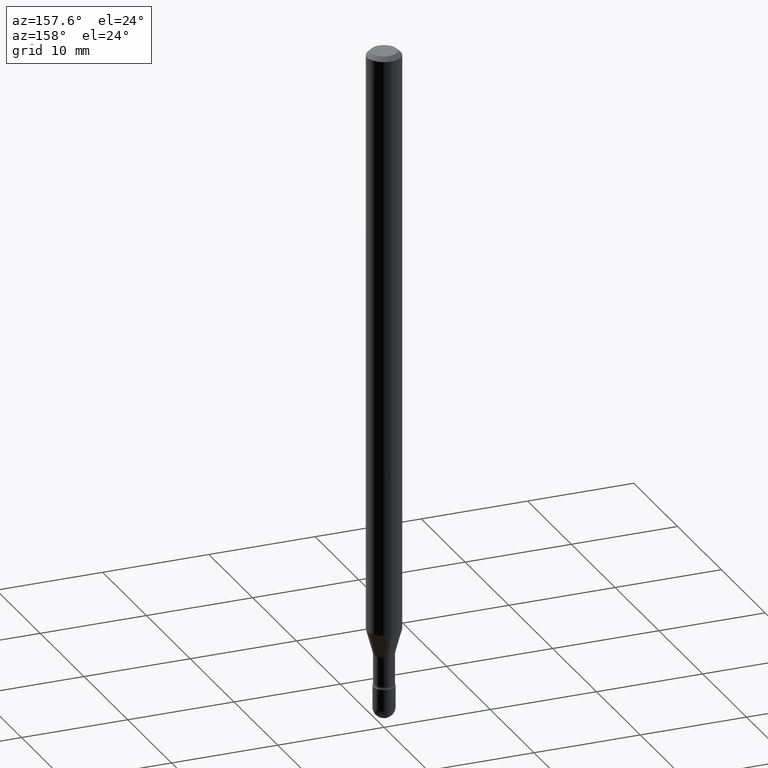
[diagram: clean part render]
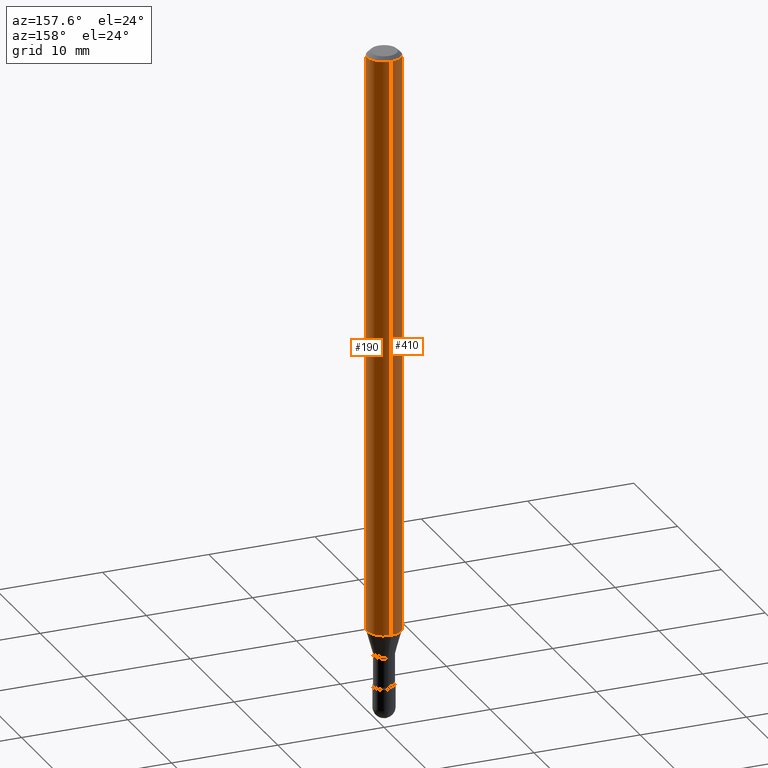
[diagram: same view with one multi-face feature highlighted, each face labeled with its STEP entity id]
A machine part, auxiliary view. The highlighted faces form ONE feature: a constant-radius fillet chain: 2 tangent blend faces with common blend radius 1.5875 mm. The faces share edges in the B-rep.
Their STEP definitions:
[1] entity #190 (Cylinder):
#9 = VECTOR ( 'NONE', #114, 39.37007874015748143 ) ;
#38 = VERTEX_POINT ( 'NONE', #508 ) ;
#42 = LINE ( 'NONE', #388, #117 ) ;
#60 = CARTESIAN_POINT ( 'NONE',  ( -4.364351673553388650E-16, -0.06250000000000759115, -2.167071934891535268 ) ) ;
#74 = DIRECTION ( 'NONE',  ( -6.982962677686265922E-15, -1.000000000000000000, 3.491484914929779537E-15 ) ) ;
#97 = VERTEX_POINT ( 'NONE', #549 ) ;
#108 = CIRCLE ( 'NONE', #239, 0.06250000000000000000 ) ;
#114 = DIRECTION ( 'NONE',  ( -2.445466309017185852E-29, 3.491484914929780326E-15, 1.000000000000000000 ) ) ;
#117 = VECTOR ( 'NONE', #302, 39.37007874015748143 ) ;
#119 = DIRECTION ( 'NONE',  ( -2.445466309017186132E-29, 3.491484914929780720E-15, 1.000000000000000000 ) ) ;
#125 = ORIENTED_EDGE ( 'NONE', *, *, #219, .T. ) ;
#126 = AXIS2_PLACEMENT_3D ( 'NONE', #511, #119, #74 ) ;
#186 = DIRECTION ( 'NONE',  ( -2.445466309017186132E-29, 3.491484914929780720E-15, 1.000000000000000000 ) ) ;
#190 = ADVANCED_FACE ( 'NONE', ( #339 ), #198, .T. ) ;
#193 = CARTESIAN_POINT ( 'NONE',  ( -4.364351673553912750E-16, -0.06250000000000005551, -0.01499999999999986587 ) ) ;
#194 = CIRCLE ( 'NONE', #352, 0.06250000000000000000 ) ;
#198 = CYLINDRICAL_SURFACE ( 'NONE', #126, 0.06250000000000000000 ) ;
#219 = EDGE_CURVE ( 'NONE', #97, #38, #42, .T. ) ;
#239 = AXIS2_PLACEMENT_3D ( 'NONE', #247, #433, #476 ) ;
#241 = ORIENTED_EDGE ( 'NONE', *, *, #520, .F. ) ;
#242 = CARTESIAN_POINT ( 'NONE',  ( 3.668199463525799289E-31, -5.237227372394699799E-17, -0.01500000000000008271 ) ) ;
#247 = CARTESIAN_POINT ( 'NONE',  ( 5.299501405993934666E-29, -7.566298970241487768E-15, -2.167071934891535712 ) ) ;
#267 = ORIENTED_EDGE ( 'NONE', *, *, #399, .F. ) ;
#302 = DIRECTION ( 'NONE',  ( -2.445466309017185852E-29, 3.491484914929780326E-15, 1.000000000000000000 ) ) ;
#325 = DIRECTION ( 'NONE',  ( -6.982962677686265922E-15, -1.000000000000000000, 3.483106191921935554E-15 ) ) ;
#332 = CARTESIAN_POINT ( 'NONE',  ( -4.364351673553916201E-16, -0.06250000000000000000, 6.962912060743572596E-16 ) ) ;
#339 = FACE_OUTER_BOUND ( 'NONE', #355, .T. ) ;
#348 = VERTEX_POINT ( 'NONE', #193 ) ;
#352 = AXIS2_PLACEMENT_3D ( 'NONE', #242, #186, #325 ) ;
#355 = EDGE_LOOP ( 'NONE', ( #534, #125, #267, #241 ) ) ;
#376 = VERTEX_POINT ( 'NONE', #60 ) ;
#388 = CARTESIAN_POINT ( 'NONE',  ( 4.440892098500625669E-16, 0.06250000000000000000, 2.598555917081347682E-16 ) ) ;
#399 = EDGE_CURVE ( 'NONE', #348, #38, #194, .T. ) ;
#433 = DIRECTION ( 'NONE',  ( -2.445466309017186132E-29, 3.491484914929780720E-15, 1.000000000000000000 ) ) ;
#440 = LINE ( 'NONE', #332, #9 ) ;
#473 = EDGE_CURVE ( 'NONE', #376, #97, #108, .T. ) ;
#476 = DIRECTION ( 'NONE',  ( -6.982962677686265922E-15, -1.000000000000000000, 4.370956789862821150E-15 ) ) ;
#508 = CARTESIAN_POINT ( 'NONE',  ( 4.440892098501159629E-16, 0.06249999999999995837, -0.01500000000000030129 ) ) ;
#511 = CARTESIAN_POINT ( 'NONE',  ( -1.169113584055446105E-44, 1.669184350826100908E-30, 4.780733988912460139E-16 ) ) ;
#520 = EDGE_CURVE ( 'NONE', #376, #348, #440, .T. ) ;
#534 = ORIENTED_EDGE ( 'NONE', *, *, #473, .T. ) ;
#549 = CARTESIAN_POINT ( 'NONE',  ( 4.440892098501152726E-16, 0.06249999999999240191, -2.167071934891535712 ) ) ;
[2] entity #410 (Cylinder):
#5 = EDGE_CURVE ( 'NONE', #97, #376, #102, .T. ) ;
#9 = VECTOR ( 'NONE', #114, 39.37007874015748143 ) ;
#30 = EDGE_CURVE ( 'NONE', #38, #348, #160, .T. ) ;
#38 = VERTEX_POINT ( 'NONE', #508 ) ;
#42 = LINE ( 'NONE', #388, #117 ) ;
#49 = ORIENTED_EDGE ( 'NONE', *, *, #219, .F. ) ;
#60 = CARTESIAN_POINT ( 'NONE',  ( -4.364351673553388650E-16, -0.06250000000000759115, -2.167071934891535268 ) ) ;
#64 = DIRECTION ( 'NONE',  ( -6.982962677686265922E-15, -1.000000000000000000, 3.491484914929779537E-15 ) ) ;
#97 = VERTEX_POINT ( 'NONE', #549 ) ;
#102 = CIRCLE ( 'NONE', #459, 0.06250000000000000000 ) ;
#105 = ORIENTED_EDGE ( 'NONE', *, *, #520, .T. ) ;
#114 = DIRECTION ( 'NONE',  ( -2.445466309017185852E-29, 3.491484914929780326E-15, 1.000000000000000000 ) ) ;
#117 = VECTOR ( 'NONE', #302, 39.37007874015748143 ) ;
#124 = ORIENTED_EDGE ( 'NONE', *, *, #5, .T. ) ;
#133 = DIRECTION ( 'NONE',  ( -6.982962677686265922E-15, -1.000000000000000000, 4.370956789862821150E-15 ) ) ;
#148 = CYLINDRICAL_SURFACE ( 'NONE', #229, 0.06250000000000000000 ) ;
#160 = CIRCLE ( 'NONE', #301, 0.06250000000000000000 ) ;
#187 = ORIENTED_EDGE ( 'NONE', *, *, #30, .F. ) ;
#193 = CARTESIAN_POINT ( 'NONE',  ( -4.364351673553912750E-16, -0.06250000000000005551, -0.01499999999999986587 ) ) ;
#201 = CARTESIAN_POINT ( 'NONE',  ( 3.668199463525799289E-31, -5.237227372394699799E-17, -0.01500000000000008271 ) ) ;
#209 = EDGE_LOOP ( 'NONE', ( #49, #124, #105, #187 ) ) ;
#219 = EDGE_CURVE ( 'NONE', #97, #38, #42, .T. ) ;
#229 = AXIS2_PLACEMENT_3D ( 'NONE', #281, #454, #64 ) ;
#273 = CARTESIAN_POINT ( 'NONE',  ( 5.299501405993934666E-29, -7.566298970241487768E-15, -2.167071934891535712 ) ) ;
#281 = CARTESIAN_POINT ( 'NONE',  ( -1.169113584055446105E-44, 1.669184350826100908E-30, 4.780733988912460139E-16 ) ) ;
#301 = AXIS2_PLACEMENT_3D ( 'NONE', #201, #368, #411 ) ;
#302 = DIRECTION ( 'NONE',  ( -2.445466309017185852E-29, 3.491484914929780326E-15, 1.000000000000000000 ) ) ;
#332 = CARTESIAN_POINT ( 'NONE',  ( -4.364351673553916201E-16, -0.06250000000000000000, 6.962912060743572596E-16 ) ) ;
#348 = VERTEX_POINT ( 'NONE', #193 ) ;
#368 = DIRECTION ( 'NONE',  ( -2.445466309017186132E-29, 3.491484914929780720E-15, 1.000000000000000000 ) ) ;
#376 = VERTEX_POINT ( 'NONE', #60 ) ;
#388 = CARTESIAN_POINT ( 'NONE',  ( 4.440892098500625669E-16, 0.06250000000000000000, 2.598555917081347682E-16 ) ) ;
#410 = ADVANCED_FACE ( 'NONE', ( #540 ), #148, .T. ) ;
#411 = DIRECTION ( 'NONE',  ( -6.982962677686265922E-15, -1.000000000000000000, 3.483106191921935554E-15 ) ) ;
#440 = LINE ( 'NONE', #332, #9 ) ;
#454 = DIRECTION ( 'NONE',  ( -2.445466309017186132E-29, 3.491484914929780720E-15, 1.000000000000000000 ) ) ;
#459 = AXIS2_PLACEMENT_3D ( 'NONE', #273, #529, #133 ) ;
#508 = CARTESIAN_POINT ( 'NONE',  ( 4.440892098501159629E-16, 0.06249999999999995837, -0.01500000000000030129 ) ) ;
#520 = EDGE_CURVE ( 'NONE', #376, #348, #440, .T. ) ;
#529 = DIRECTION ( 'NONE',  ( -2.445466309017186132E-29, 3.491484914929780720E-15, 1.000000000000000000 ) ) ;
#540 = FACE_OUTER_BOUND ( 'NONE', #209, .T. ) ;
#549 = CARTESIAN_POINT ( 'NONE',  ( 4.440892098501152726E-16, 0.06249999999999240191, -2.167071934891535712 ) ) ;